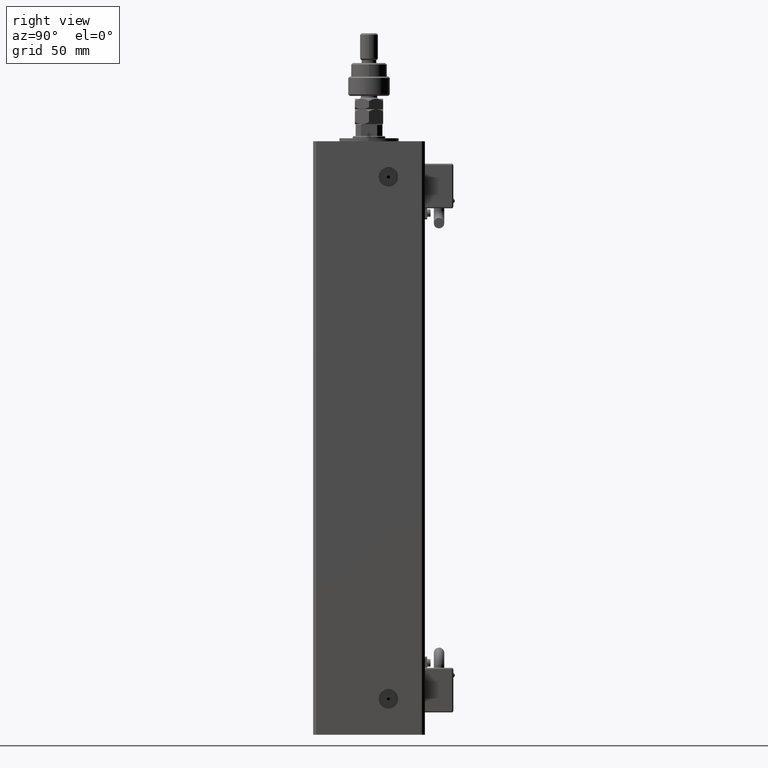
[diagram: clean part render]
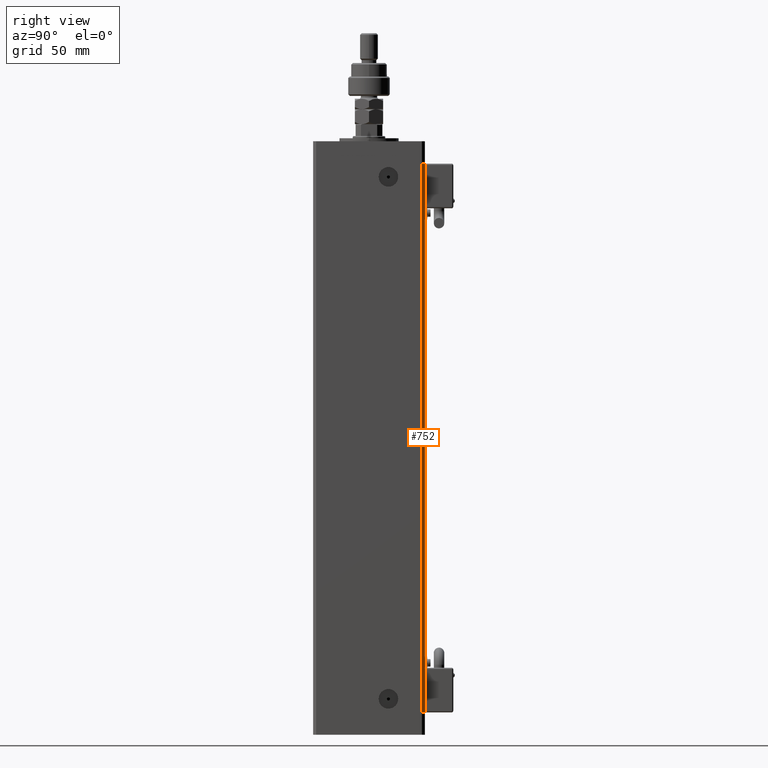
[diagram: same view with one face highlighted and labeled with its STEP entity id]
A machine part, right view. The second image highlights one B-rep face of the part: STEP entity #752.
In plain terms, the highlighted planar face has unit normal (0.7071, 0.7071, 0).
Its self-contained STEP definition (entity closure, byte-faithful):
#752 = ADVANCED_FACE ( 'NONE', ( #56142 ), #46465, .T. ) ;
#3011 = EDGE_CURVE ( 'NONE', #29887, #26501, #10929, .T. ) ;
#7724 = AXIS2_PLACEMENT_3D ( 'NONE', #42344, #46754, #32694 ) ;
#8753 = CARTESIAN_POINT ( 'NONE',  ( 40.50000000000000000, 37.50000000000000711, 368.5000000000000000 ) ) ;
#8959 = DIRECTION ( 'NONE',  ( 0.7071067811865500152, -0.7071067811865451302, 0.000000000000000000 ) ) ;
#9363 = EDGE_LOOP ( 'NONE', ( #53234, #25911, #13519, #37149 ) ) ;
#10929 = LINE ( 'NONE', #23255, #40577 ) ;
#11919 = CARTESIAN_POINT ( 'NONE',  ( 40.50000000000000000, 37.50000000000000711, 0.000000000000000000 ) ) ;
#12853 = VERTEX_POINT ( 'NONE', #44721 ) ;
#13519 = ORIENTED_EDGE ( 'NONE', *, *, #40905, .T. ) ;
#15243 = DIRECTION ( 'NONE',  ( -0.000000000000000000, -0.000000000000000000, -1.000000000000000000 ) ) ;
#16790 = CARTESIAN_POINT ( 'NONE',  ( 40.50000000000000000, 37.50000000000000711, 368.5000000000000000 ) ) ;
#17240 = CARTESIAN_POINT ( 'NONE',  ( 42.50000000000000711, 35.50000000000001421, 0.000000000000000000 ) ) ;
#19746 = CARTESIAN_POINT ( 'NONE',  ( 42.50000000000000711, 35.50000000000001421, 368.5000000000000000 ) ) ;
#23255 = CARTESIAN_POINT ( 'NONE',  ( 42.50000000000000711, 35.50000000000001421, 368.5000000000000000 ) ) ;
#25911 = ORIENTED_EDGE ( 'NONE', *, *, #48404, .F. ) ;
#26501 = VERTEX_POINT ( 'NONE', #17240 ) ;
#29887 = VERTEX_POINT ( 'NONE', #19746 ) ;
#30159 = VERTEX_POINT ( 'NONE', #8753 ) ;
#32694 = DIRECTION ( 'NONE',  ( -0.7071067811865499042, 0.7071067811865451302, 0.000000000000000000 ) ) ;
#34099 = DIRECTION ( 'NONE',  ( 0.7071067811865500152, -0.7071067811865451302, 0.000000000000000000 ) ) ;
#34668 = LINE ( 'NONE', #16790, #36132 ) ;
#36132 = VECTOR ( 'NONE', #34099, 1000.000000000000114 ) ;
#37149 = ORIENTED_EDGE ( 'NONE', *, *, #3011, .T. ) ;
#37518 = LINE ( 'NONE', #55411, #39059 ) ;
#39059 = VECTOR ( 'NONE', #15243, 1000.000000000000000 ) ;
#40577 = VECTOR ( 'NONE', #45820, 1000.000000000000000 ) ;
#40905 = EDGE_CURVE ( 'NONE', #30159, #29887, #34668, .T. ) ;
#42344 = CARTESIAN_POINT ( 'NONE',  ( 40.50000000000000000, 37.50000000000000711, 368.5000000000000000 ) ) ;
#43677 = EDGE_CURVE ( 'NONE', #12853, #26501, #52084, .T. ) ;
#44721 = CARTESIAN_POINT ( 'NONE',  ( 40.50000000000000000, 37.50000000000000711, 0.000000000000000000 ) ) ;
#45820 = DIRECTION ( 'NONE',  ( -0.000000000000000000, -0.000000000000000000, -1.000000000000000000 ) ) ;
#46465 = PLANE ( 'NONE',  #7724 ) ;
#46754 = DIRECTION ( 'NONE',  ( 0.7071067811865451302, 0.7071067811865499042, -0.000000000000000000 ) ) ;
#48404 = EDGE_CURVE ( 'NONE', #30159, #12853, #37518, .T. ) ;
#52084 = LINE ( 'NONE', #11919, #55851 ) ;
#53234 = ORIENTED_EDGE ( 'NONE', *, *, #43677, .F. ) ;
#55411 = CARTESIAN_POINT ( 'NONE',  ( 40.50000000000000000, 37.50000000000000711, 368.5000000000000000 ) ) ;
#55851 = VECTOR ( 'NONE', #8959, 1000.000000000000114 ) ;
#56142 = FACE_OUTER_BOUND ( 'NONE', #9363, .T. ) ;